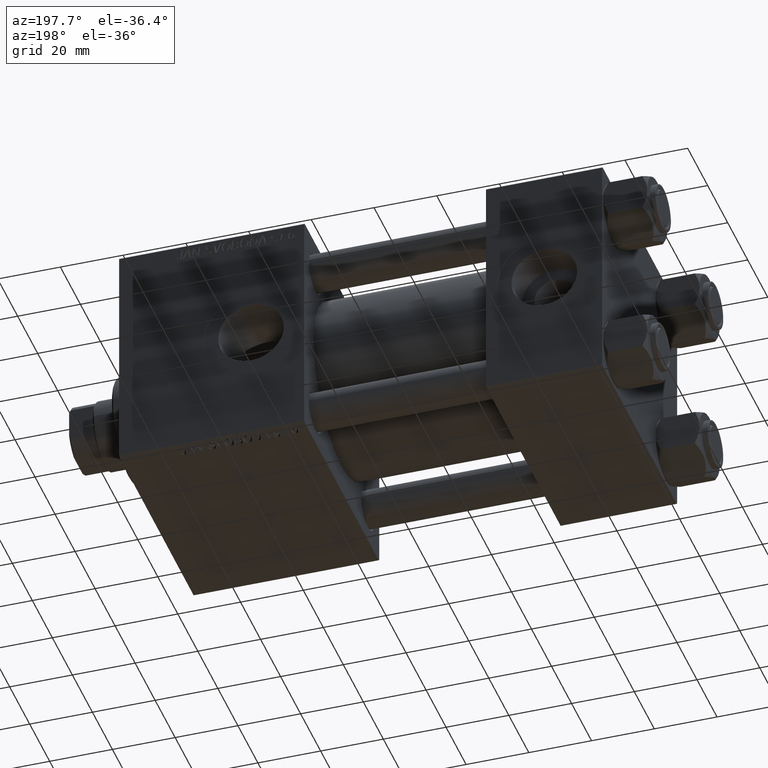
[diagram: clean part render]
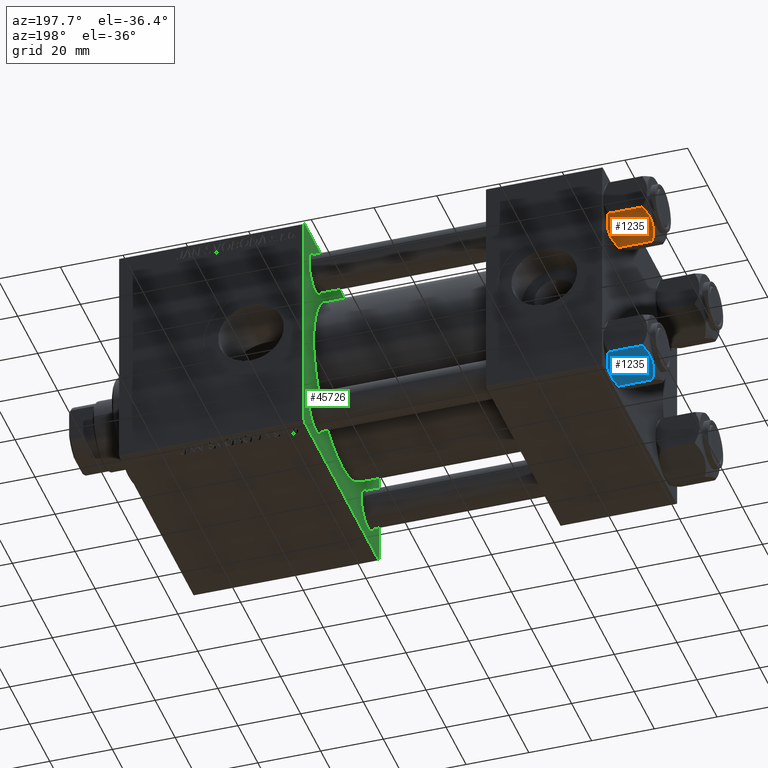
[diagram: same view with three faces highlighted in distinct colors, each labeled with its STEP entity id]
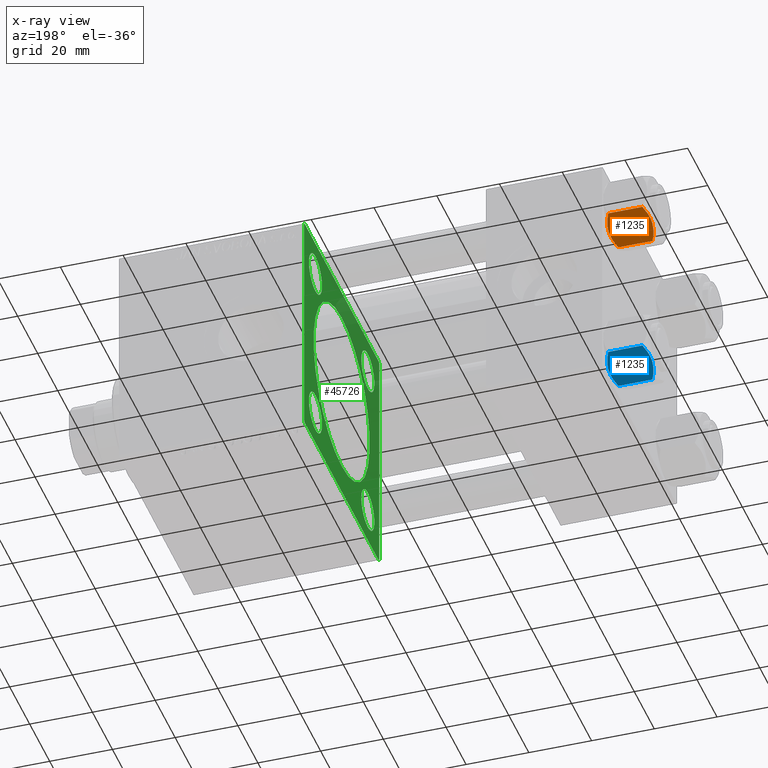
[diagram: x-ray of the same camera — body ghosted, the three highlighted faces saturated]
A machine part, auxiliary view with three faces highlighted in distinct colors.
The next image is the same camera in x-ray (body ghosted, the three faces saturated) — at least one of them is partly hidden behind the body in this view.
Their STEP definitions:

[orange] entity #1235 — the highlighted planar face has unit normal (0, -0.5, 0.866).
#546 = EDGE_CURVE ( 'NONE', #10179, #28955, #17690, .T. ) ;
#1235 = ADVANCED_FACE ( 'NONE', ( #29588 ), #45114, .F. ) ;
#3995 = CARTESIAN_POINT ( 'NONE',  ( -10.69662495661650148, 1.599332489581337668, -0.7114554706434472742 ) ) ;
#4336 = EDGE_LOOP ( 'NONE', ( #10776, #11464, #45789, #26738, #33898, #37542 ) ) ;
#4874 = CARTESIAN_POINT ( 'NONE',  ( -5.809999999999997833, 10.06321519197518022, -12.44321519197518455 ) ) ;
#5474 = CARTESIAN_POINT ( 'NONE',  ( -8.715000000000001634, 5.031607595987591885, -14.00000000000000000 ) ) ;
#5675 = EDGE_CURVE ( 'NONE', #34033, #15609, #30622, .T. ) ;
#6272 = CARTESIAN_POINT ( 'NONE',  ( -9.974696630283190757, 2.849749030213795109, -13.69973261901325934 ) ) ;
#7233 = LINE ( 'NONE', #37517, #7392 ) ;
#7392 = VECTOR ( 'NONE', #41318, 1000.000000000000000 ) ;
#8567 = CARTESIAN_POINT ( 'NONE',  ( -8.715000000000003411, 5.031607595987592774, 0.000000000000000000 ) ) ;
#10179 = VERTEX_POINT ( 'NONE', #17200 ) ;
#10776 = ORIENTED_EDGE ( 'NONE', *, *, #32506, .F. ) ;
#11464 = ORIENTED_EDGE ( 'NONE', *, *, #546, .T. ) ;
#11877 = CARTESIAN_POINT ( 'NONE',  ( -9.220295946303428636, 4.156409344131455796, 3.796401669593772542E-15 ) ) ;
#12391 = CARTESIAN_POINT ( 'NONE',  ( -11.61999999999999922, 6.270720075409452187E-15, -1.556784808024810562 ) ) ;
#12852 = CARTESIAN_POINT ( 'NONE',  ( -8.202333004087897450, 5.919572880271055659, -0.03994118060690620559 ) ) ;
#13345 = CARTESIAN_POINT ( 'NONE',  ( -8.460569896449618099, 5.472293462311865753, 3.939644352451667145E-15 ) ) ;
#15609 = VERTEX_POINT ( 'NONE', #4874 ) ;
#17200 = CARTESIAN_POINT ( 'NONE',  ( -11.61999999999999922, 6.270720075510426383E-15, -12.44321519197518811 ) ) ;
#17690 = LINE ( 'NONE', #36508, #38178 ) ;
#17857 = B_SPLINE_CURVE_WITH_KNOTS ( 'NONE', 3,
 ( #33996, #29682, #45204, #6272, #17984, #33497, #45717, #25865 ),
 .UNSPECIFIED., .F., .F.,
 ( 4, 2, 2, 4 ),
 ( 2.544312114905218436E-07, 0.003011550106433537755, 0.004517197944044560980, 0.006022845781655582903 ),
 .UNSPECIFIED. ) ;
#17984 = CARTESIAN_POINT ( 'NONE',  ( -9.729165168613649328, 3.275021996682086822, -13.80960203119265906 ) ) ;
#18030 = CARTESIAN_POINT ( 'NONE',  ( -7.713000053756302599, 6.767122412062954062, -13.84547602999601601 ) ) ;
#19278 = VERTEX_POINT ( 'NONE', #21200 ) ;
#20024 = CARTESIAN_POINT ( 'NONE',  ( -6.265545725125282850, 9.274186850887385702, -1.101239082899533539 ) ) ;
#20857 = CARTESIAN_POINT ( 'NONE',  ( -8.715000000000001634, 5.031607595987591885, -14.00000000000000000 ) ) ;
#21200 = CARTESIAN_POINT ( 'NONE',  ( -5.809999999999997833, 10.06321519197518022, -1.556784808024814115 ) ) ;
#21531 = B_SPLINE_CURVE_WITH_KNOTS ( 'NONE', 3,
 ( #28145, #20024, #47488, #43901, #24819, #12852, #13345, #8567 ),
 .UNSPECIFIED., .F., .F.,
 ( 4, 2, 2, 4 ),
 ( 2.544312114902182352E-07, 0.003011550106433540791, 0.004517197944044565316, 0.006022845781655589842 ),
 .UNSPECIFIED. ) ;
#24677 = CARTESIAN_POINT ( 'NONE',  ( -8.209704053696567527, 5.906805847843725310, -14.00000000000000533 ) ) ;
#24817 = CARTESIAN_POINT ( 'NONE',  ( -11.61999999999999922, 6.270720075409452187E-15, -1.556784808024810562 ) ) ;
#24819 = CARTESIAN_POINT ( 'NONE',  ( -7.700834831386344170, 6.788193195293096949, -0.1903979688073401122 ) ) ;
#25035 = CARTESIAN_POINT ( 'NONE',  ( -8.715000000000003411, 5.031607595987592774, 0.000000000000000000 ) ) ;
#25564 = EDGE_CURVE ( 'NONE', #35865, #28955, #27387, .T. ) ;
#25750 = EDGE_CURVE ( 'NONE', #15609, #19278, #7233, .T. ) ;
#25770 = DIRECTION ( 'NONE',  ( 0.8660254037844385966, -0.5000000000000002220, 0.000000000000000000 ) ) ;
#25865 = CARTESIAN_POINT ( 'NONE',  ( -8.715000000000001634, 5.031607595987591885, -14.00000000000000000 ) ) ;
#26025 = CARTESIAN_POINT ( 'NONE',  ( -11.61999999999999922, 6.288644352490894150E-15, -14.00000000000000000 ) ) ;
#26738 = ORIENTED_EDGE ( 'NONE', *, *, #38967, .F. ) ;
#27387 = B_SPLINE_CURVE_WITH_KNOTS ( 'NONE', 3,
 ( #35774, #11877, #38836, #3995, #43442, #12391 ),
 .UNSPECIFIED., .F., .F.,
 ( 4, 2, 4 ),
 ( 0.006022845781655589842, 0.009013049135303633289, 0.01200325248895167674 ),
 .UNSPECIFIED. ) ;
#28145 = CARTESIAN_POINT ( 'NONE',  ( -5.809999999999997833, 10.06321519197518022, -1.556784808024814115 ) ) ;
#28955 = VERTEX_POINT ( 'NONE', #24817 ) ;
#29588 = FACE_OUTER_BOUND ( 'NONE', #4336, .T. ) ;
#29682 = CARTESIAN_POINT ( 'NONE',  ( -11.16445427487471598, 0.7890283410878030645, -12.89876091710047312 ) ) ;
#30622 = B_SPLINE_CURVE_WITH_KNOTS ( 'NONE', 3,
 ( #20857, #24677, #18030, #48325, #36585, #33023 ),
 .UNSPECIFIED., .F., .F.,
 ( 4, 2, 4 ),
 ( 0.006022845781655582903, 0.009013049135303629819, 0.01200325248895167847 ),
 .UNSPECIFIED. ) ;
#32506 = EDGE_CURVE ( 'NONE', #10179, #34033, #17857, .T. ) ;
#33023 = CARTESIAN_POINT ( 'NONE',  ( -5.809999999999997833, 10.06321519197518022, -12.44321519197518455 ) ) ;
#33497 = CARTESIAN_POINT ( 'NONE',  ( -9.227666995912096937, 4.143642311704127223, -13.96005881939308857 ) ) ;
#33898 = ORIENTED_EDGE ( 'NONE', *, *, #25750, .F. ) ;
#33996 = CARTESIAN_POINT ( 'NONE',  ( -11.61999999999999922, 6.270720075510426383E-15, -12.44321519197518811 ) ) ;
#34033 = VERTEX_POINT ( 'NONE', #5474 ) ;
#35774 = CARTESIAN_POINT ( 'NONE',  ( -8.715000000000003411, 5.031607595987592774, 0.000000000000000000 ) ) ;
#35865 = VERTEX_POINT ( 'NONE', #25035 ) ;
#36269 = DIRECTION ( 'NONE',  ( -0.000000000000000000, -0.000000000000000000, 1.000000000000000000 ) ) ;
#36508 = CARTESIAN_POINT ( 'NONE',  ( -11.61999999999999922, 6.288644352490894150E-15, -14.00000000000000000 ) ) ;
#36585 = CARTESIAN_POINT ( 'NONE',  ( -6.265018354709776638, 9.275100283241455301, -12.89823354668505218 ) ) ;
#37517 = CARTESIAN_POINT ( 'NONE',  ( -5.809999999999997833, 10.06321519197518022, -14.00000000000000000 ) ) ;
#37542 = ORIENTED_EDGE ( 'NONE', *, *, #5675, .F. ) ;
#38178 = VECTOR ( 'NONE', #36269, 1000.000000000000000 ) ;
#38836 = CARTESIAN_POINT ( 'NONE',  ( -9.716999946243694453, 3.296092779912229265, -0.1545239700039824915 ) ) ;
#38967 = EDGE_CURVE ( 'NONE', #19278, #35865, #21531, .T. ) ;
#41277 = DIRECTION ( 'NONE',  ( 0.5000000000000001110, 0.8660254037844384856, 0.000000000000000000 ) ) ;
#41318 = DIRECTION ( 'NONE',  ( -0.000000000000000000, -0.000000000000000000, 1.000000000000000000 ) ) ;
#43442 = CARTESIAN_POINT ( 'NONE',  ( -11.16498164529022219, 0.7881149087337359083, -1.101766453314949379 ) ) ;
#43901 = CARTESIAN_POINT ( 'NONE',  ( -7.455303369716805406, 7.213466161761384221, -0.3002673809867362764 ) ) ;
#45114 = PLANE ( 'NONE',  #49561 ) ;
#45204 = CARTESIAN_POINT ( 'NONE',  ( -10.69859855102501101, 1.595914123792268491, -13.28585617404753627 ) ) ;
#45717 = CARTESIAN_POINT ( 'NONE',  ( -8.969430103550378064, 4.590921729663314466, -14.00000000000000178 ) ) ;
#45789 = ORIENTED_EDGE ( 'NONE', *, *, #25564, .F. ) ;
#47488 = CARTESIAN_POINT ( 'NONE',  ( -6.731401448974986934, 8.467301068182916168, -0.7141438259524646170 ) ) ;
#48325 = CARTESIAN_POINT ( 'NONE',  ( -6.733375043383492020, 8.463882702393842550, -13.28854452935654962 ) ) ;
#49561 = AXIS2_PLACEMENT_3D ( 'NONE', #26025, #25770, #41277 ) ;

[blue] entity #1235 — the highlighted planar face has unit normal (0, -0.5, 0.866).
#546 = EDGE_CURVE ( 'NONE', #10179, #28955, #17690, .T. ) ;
#1235 = ADVANCED_FACE ( 'NONE', ( #29588 ), #45114, .F. ) ;
#3995 = CARTESIAN_POINT ( 'NONE',  ( -10.69662495661650148, 1.599332489581337668, -0.7114554706434472742 ) ) ;
#4336 = EDGE_LOOP ( 'NONE', ( #10776, #11464, #45789, #26738, #33898, #37542 ) ) ;
#4874 = CARTESIAN_POINT ( 'NONE',  ( -5.809999999999997833, 10.06321519197518022, -12.44321519197518455 ) ) ;
#5474 = CARTESIAN_POINT ( 'NONE',  ( -8.715000000000001634, 5.031607595987591885, -14.00000000000000000 ) ) ;
#5675 = EDGE_CURVE ( 'NONE', #34033, #15609, #30622, .T. ) ;
#6272 = CARTESIAN_POINT ( 'NONE',  ( -9.974696630283190757, 2.849749030213795109, -13.69973261901325934 ) ) ;
#7233 = LINE ( 'NONE', #37517, #7392 ) ;
#7392 = VECTOR ( 'NONE', #41318, 1000.000000000000000 ) ;
#8567 = CARTESIAN_POINT ( 'NONE',  ( -8.715000000000003411, 5.031607595987592774, 0.000000000000000000 ) ) ;
#10179 = VERTEX_POINT ( 'NONE', #17200 ) ;
#10776 = ORIENTED_EDGE ( 'NONE', *, *, #32506, .F. ) ;
#11464 = ORIENTED_EDGE ( 'NONE', *, *, #546, .T. ) ;
#11877 = CARTESIAN_POINT ( 'NONE',  ( -9.220295946303428636, 4.156409344131455796, 3.796401669593772542E-15 ) ) ;
#12391 = CARTESIAN_POINT ( 'NONE',  ( -11.61999999999999922, 6.270720075409452187E-15, -1.556784808024810562 ) ) ;
#12852 = CARTESIAN_POINT ( 'NONE',  ( -8.202333004087897450, 5.919572880271055659, -0.03994118060690620559 ) ) ;
#13345 = CARTESIAN_POINT ( 'NONE',  ( -8.460569896449618099, 5.472293462311865753, 3.939644352451667145E-15 ) ) ;
#15609 = VERTEX_POINT ( 'NONE', #4874 ) ;
#17200 = CARTESIAN_POINT ( 'NONE',  ( -11.61999999999999922, 6.270720075510426383E-15, -12.44321519197518811 ) ) ;
#17690 = LINE ( 'NONE', #36508, #38178 ) ;
#17857 = B_SPLINE_CURVE_WITH_KNOTS ( 'NONE', 3,
 ( #33996, #29682, #45204, #6272, #17984, #33497, #45717, #25865 ),
 .UNSPECIFIED., .F., .F.,
 ( 4, 2, 2, 4 ),
 ( 2.544312114905218436E-07, 0.003011550106433537755, 0.004517197944044560980, 0.006022845781655582903 ),
 .UNSPECIFIED. ) ;
#17984 = CARTESIAN_POINT ( 'NONE',  ( -9.729165168613649328, 3.275021996682086822, -13.80960203119265906 ) ) ;
#18030 = CARTESIAN_POINT ( 'NONE',  ( -7.713000053756302599, 6.767122412062954062, -13.84547602999601601 ) ) ;
#19278 = VERTEX_POINT ( 'NONE', #21200 ) ;
#20024 = CARTESIAN_POINT ( 'NONE',  ( -6.265545725125282850, 9.274186850887385702, -1.101239082899533539 ) ) ;
#20857 = CARTESIAN_POINT ( 'NONE',  ( -8.715000000000001634, 5.031607595987591885, -14.00000000000000000 ) ) ;
#21200 = CARTESIAN_POINT ( 'NONE',  ( -5.809999999999997833, 10.06321519197518022, -1.556784808024814115 ) ) ;
#21531 = B_SPLINE_CURVE_WITH_KNOTS ( 'NONE', 3,
 ( #28145, #20024, #47488, #43901, #24819, #12852, #13345, #8567 ),
 .UNSPECIFIED., .F., .F.,
 ( 4, 2, 2, 4 ),
 ( 2.544312114902182352E-07, 0.003011550106433540791, 0.004517197944044565316, 0.006022845781655589842 ),
 .UNSPECIFIED. ) ;
#24677 = CARTESIAN_POINT ( 'NONE',  ( -8.209704053696567527, 5.906805847843725310, -14.00000000000000533 ) ) ;
#24817 = CARTESIAN_POINT ( 'NONE',  ( -11.61999999999999922, 6.270720075409452187E-15, -1.556784808024810562 ) ) ;
#24819 = CARTESIAN_POINT ( 'NONE',  ( -7.700834831386344170, 6.788193195293096949, -0.1903979688073401122 ) ) ;
#25035 = CARTESIAN_POINT ( 'NONE',  ( -8.715000000000003411, 5.031607595987592774, 0.000000000000000000 ) ) ;
#25564 = EDGE_CURVE ( 'NONE', #35865, #28955, #27387, .T. ) ;
#25750 = EDGE_CURVE ( 'NONE', #15609, #19278, #7233, .T. ) ;
#25770 = DIRECTION ( 'NONE',  ( 0.8660254037844385966, -0.5000000000000002220, 0.000000000000000000 ) ) ;
#25865 = CARTESIAN_POINT ( 'NONE',  ( -8.715000000000001634, 5.031607595987591885, -14.00000000000000000 ) ) ;
#26025 = CARTESIAN_POINT ( 'NONE',  ( -11.61999999999999922, 6.288644352490894150E-15, -14.00000000000000000 ) ) ;
#26738 = ORIENTED_EDGE ( 'NONE', *, *, #38967, .F. ) ;
#27387 = B_SPLINE_CURVE_WITH_KNOTS ( 'NONE', 3,
 ( #35774, #11877, #38836, #3995, #43442, #12391 ),
 .UNSPECIFIED., .F., .F.,
 ( 4, 2, 4 ),
 ( 0.006022845781655589842, 0.009013049135303633289, 0.01200325248895167674 ),
 .UNSPECIFIED. ) ;
#28145 = CARTESIAN_POINT ( 'NONE',  ( -5.809999999999997833, 10.06321519197518022, -1.556784808024814115 ) ) ;
#28955 = VERTEX_POINT ( 'NONE', #24817 ) ;
#29588 = FACE_OUTER_BOUND ( 'NONE', #4336, .T. ) ;
#29682 = CARTESIAN_POINT ( 'NONE',  ( -11.16445427487471598, 0.7890283410878030645, -12.89876091710047312 ) ) ;
#30622 = B_SPLINE_CURVE_WITH_KNOTS ( 'NONE', 3,
 ( #20857, #24677, #18030, #48325, #36585, #33023 ),
 .UNSPECIFIED., .F., .F.,
 ( 4, 2, 4 ),
 ( 0.006022845781655582903, 0.009013049135303629819, 0.01200325248895167847 ),
 .UNSPECIFIED. ) ;
#32506 = EDGE_CURVE ( 'NONE', #10179, #34033, #17857, .T. ) ;
#33023 = CARTESIAN_POINT ( 'NONE',  ( -5.809999999999997833, 10.06321519197518022, -12.44321519197518455 ) ) ;
#33497 = CARTESIAN_POINT ( 'NONE',  ( -9.227666995912096937, 4.143642311704127223, -13.96005881939308857 ) ) ;
#33898 = ORIENTED_EDGE ( 'NONE', *, *, #25750, .F. ) ;
#33996 = CARTESIAN_POINT ( 'NONE',  ( -11.61999999999999922, 6.270720075510426383E-15, -12.44321519197518811 ) ) ;
#34033 = VERTEX_POINT ( 'NONE', #5474 ) ;
#35774 = CARTESIAN_POINT ( 'NONE',  ( -8.715000000000003411, 5.031607595987592774, 0.000000000000000000 ) ) ;
#35865 = VERTEX_POINT ( 'NONE', #25035 ) ;
#36269 = DIRECTION ( 'NONE',  ( -0.000000000000000000, -0.000000000000000000, 1.000000000000000000 ) ) ;
#36508 = CARTESIAN_POINT ( 'NONE',  ( -11.61999999999999922, 6.288644352490894150E-15, -14.00000000000000000 ) ) ;
#36585 = CARTESIAN_POINT ( 'NONE',  ( -6.265018354709776638, 9.275100283241455301, -12.89823354668505218 ) ) ;
#37517 = CARTESIAN_POINT ( 'NONE',  ( -5.809999999999997833, 10.06321519197518022, -14.00000000000000000 ) ) ;
#37542 = ORIENTED_EDGE ( 'NONE', *, *, #5675, .F. ) ;
#38178 = VECTOR ( 'NONE', #36269, 1000.000000000000000 ) ;
#38836 = CARTESIAN_POINT ( 'NONE',  ( -9.716999946243694453, 3.296092779912229265, -0.1545239700039824915 ) ) ;
#38967 = EDGE_CURVE ( 'NONE', #19278, #35865, #21531, .T. ) ;
#41277 = DIRECTION ( 'NONE',  ( 0.5000000000000001110, 0.8660254037844384856, 0.000000000000000000 ) ) ;
#41318 = DIRECTION ( 'NONE',  ( -0.000000000000000000, -0.000000000000000000, 1.000000000000000000 ) ) ;
#43442 = CARTESIAN_POINT ( 'NONE',  ( -11.16498164529022219, 0.7881149087337359083, -1.101766453314949379 ) ) ;
#43901 = CARTESIAN_POINT ( 'NONE',  ( -7.455303369716805406, 7.213466161761384221, -0.3002673809867362764 ) ) ;
#45114 = PLANE ( 'NONE',  #49561 ) ;
#45204 = CARTESIAN_POINT ( 'NONE',  ( -10.69859855102501101, 1.595914123792268491, -13.28585617404753627 ) ) ;
#45717 = CARTESIAN_POINT ( 'NONE',  ( -8.969430103550378064, 4.590921729663314466, -14.00000000000000178 ) ) ;
#45789 = ORIENTED_EDGE ( 'NONE', *, *, #25564, .F. ) ;
#47488 = CARTESIAN_POINT ( 'NONE',  ( -6.731401448974986934, 8.467301068182916168, -0.7141438259524646170 ) ) ;
#48325 = CARTESIAN_POINT ( 'NONE',  ( -6.733375043383492020, 8.463882702393842550, -13.28854452935654962 ) ) ;
#49561 = AXIS2_PLACEMENT_3D ( 'NONE', #26025, #25770, #41277 ) ;

[green] entity #45726 — the highlighted planar face has unit normal (-1, 0, 0).
#88 = VECTOR ( 'NONE', #36224, 1000.000000000000114 ) ;
#164 = CARTESIAN_POINT ( 'NONE',  ( 95.00000000000000000, -2.602085213965210642E-15, 0.000000000000000000 ) ) ;
#231 = CARTESIAN_POINT ( 'NONE',  ( 95.00000000000000000, 26.14999999999999858, 26.15000000000000213 ) ) ;
#289 = ORIENTED_EDGE ( 'NONE', *, *, #37687, .F. ) ;
#971 = AXIS2_PLACEMENT_3D ( 'NONE', #45606, #11247, #10754 ) ;
#1452 = EDGE_CURVE ( 'NONE', #35498, #30117, #43101, .T. ) ;
#1508 = ORIENTED_EDGE ( 'NONE', *, *, #30289, .T. ) ;
#1775 = DIRECTION ( 'NONE',  ( 0.000000000000000000, 0.000000000000000000, -1.000000000000000000 ) ) ;
#1816 = CARTESIAN_POINT ( 'NONE',  ( 95.00000000000000000, -26.14999999999999147, 26.15000000000000924 ) ) ;
#1974 = EDGE_LOOP ( 'NONE', ( #10250, #48907, #15872, #33097, #289, #28584, #21096, #23961 ) ) ;
#2468 = AXIS2_PLACEMENT_3D ( 'NONE', #1816, #40457, #29022 ) ;
#2546 = ORIENTED_EDGE ( 'NONE', *, *, #23704, .T. ) ;
#2739 = DIRECTION ( 'NONE',  ( 0.000000000000000000, -0.7071067811865671127, 0.7071067811865279218 ) ) ;
#3019 = EDGE_LOOP ( 'NONE', ( #14239, #46843 ) ) ;
#3572 = FACE_BOUND ( 'NONE', #44704, .T. ) ;
#3784 = DIRECTION ( 'NONE',  ( 1.000000000000000000, 0.000000000000000000, -0.000000000000000000 ) ) ;
#4063 = DIRECTION ( 'NONE',  ( 0.000000000000000000, 0.000000000000000000, 1.000000000000000000 ) ) ;
#4758 = VERTEX_POINT ( 'NONE', #48053 ) ;
#4892 = AXIS2_PLACEMENT_3D ( 'NONE', #231, #3784, #34803 ) ;
#5412 = CARTESIAN_POINT ( 'NONE',  ( 95.00000000000000000, 26.14999999999999858, 19.64999999999999147 ) ) ;
#5725 = VERTEX_POINT ( 'NONE', #25661 ) ;
#5745 = CARTESIAN_POINT ( 'NONE',  ( 95.00000000000000000, -26.14999999999999147, 19.64999999999999147 ) ) ;
#6434 = EDGE_CURVE ( 'NONE', #4758, #33706, #20981, .T. ) ;
#6546 = LINE ( 'NONE', #37581, #17979 ) ;
#7158 = ORIENTED_EDGE ( 'NONE', *, *, #26832, .T. ) ;
#7457 = CIRCLE ( 'NONE', #971, 6.500000000000015987 ) ;
#7471 = EDGE_CURVE ( 'NONE', #28661, #13360, #6546, .T. ) ;
#7597 = CARTESIAN_POINT ( 'NONE',  ( 95.00000000000000000, -37.50000000000000711, -37.00000000000000711 ) ) ;
#7640 = CARTESIAN_POINT ( 'NONE',  ( 95.00000000000000000, 0.000000000000000000, 0.000000000000000000 ) ) ;
#8035 = DIRECTION ( 'NONE',  ( 0.000000000000000000, 0.7071067811865474617, -0.7071067811865474617 ) ) ;
#8141 = FACE_BOUND ( 'NONE', #10000, .T. ) ;
#8793 = CARTESIAN_POINT ( 'NONE',  ( 95.00000000000000000, 37.25000000000000000, 37.25000000000000000 ) ) ;
#8868 = DIRECTION ( 'NONE',  ( 0.000000000000000000, -1.000000000000000000, 0.000000000000000000 ) ) ;
#9522 = DIRECTION ( 'NONE',  ( 1.000000000000000000, 0.000000000000000000, -0.000000000000000000 ) ) ;
#9654 = CARTESIAN_POINT ( 'NONE',  ( 95.00000000000000000, -2.602085213965210642E-15, 0.000000000000000000 ) ) ;
#9679 = DIRECTION ( 'NONE',  ( 0.000000000000000000, 0.000000000000000000, 1.000000000000000000 ) ) ;
#9921 = AXIS2_PLACEMENT_3D ( 'NONE', #164, #38321, #50055 ) ;
#10000 = EDGE_LOOP ( 'NONE', ( #47894, #43012 ) ) ;
#10079 = EDGE_LOOP ( 'NONE', ( #1508, #2546 ) ) ;
#10250 = ORIENTED_EDGE ( 'NONE', *, *, #21712, .T. ) ;
#10731 = VECTOR ( 'NONE', #42749, 1000.000000000000000 ) ;
#10754 = DIRECTION ( 'NONE',  ( 0.000000000000000000, 0.000000000000000000, 1.000000000000000000 ) ) ;
#10938 = CIRCLE ( 'NONE', #46691, 28.00000000000000000 ) ;
#11100 = CARTESIAN_POINT ( 'NONE',  ( 95.00000000000000000, 37.50000000000000000, -36.99999999999999289 ) ) ;
#11165 = VECTOR ( 'NONE', #8035, 1000.000000000000114 ) ;
#11247 = DIRECTION ( 'NONE',  ( 1.000000000000000000, 0.000000000000000000, -0.000000000000000000 ) ) ;
#11957 = LINE ( 'NONE', #46583, #10731 ) ;
#12100 = LINE ( 'NONE', #8793, #11165 ) ;
#12679 = CARTESIAN_POINT ( 'NONE',  ( 95.00000000000000000, 37.50000000000000000, -37.50000000000000000 ) ) ;
#13360 = VERTEX_POINT ( 'NONE', #7597 ) ;
#13458 = CARTESIAN_POINT ( 'NONE',  ( 95.00000000000000000, 37.50000000000000000, 37.49999999999999289 ) ) ;
#13527 = CARTESIAN_POINT ( 'NONE',  ( 95.00000000000000000, 26.14999999999999858, 26.15000000000000213 ) ) ;
#13585 = CARTESIAN_POINT ( 'NONE',  ( 95.00000000000000000, -26.14999999999999147, -26.15000000000000924 ) ) ;
#13643 = EDGE_CURVE ( 'NONE', #33371, #13883, #12100, .T. ) ;
#13728 = EDGE_CURVE ( 'NONE', #30117, #35498, #16049, .T. ) ;
#13874 = CARTESIAN_POINT ( 'NONE',  ( 95.00000000000000000, 37.25000000000026290, -37.24999999999974420 ) ) ;
#13883 = VERTEX_POINT ( 'NONE', #27066 ) ;
#14159 = CARTESIAN_POINT ( 'NONE',  ( 95.00000000000000000, -36.99999999999998579, -37.50000000000000000 ) ) ;
#14239 = ORIENTED_EDGE ( 'NONE', *, *, #18297, .T. ) ;
#14732 = CARTESIAN_POINT ( 'NONE',  ( 95.00000000000000000, -36.99999999999997158, 37.49999999999997868 ) ) ;
#14795 = DIRECTION ( 'NONE',  ( 0.000000000000000000, 0.000000000000000000, 1.000000000000000000 ) ) ;
#14834 = DIRECTION ( 'NONE',  ( 1.000000000000000000, 0.000000000000000000, -0.000000000000000000 ) ) ;
#15255 = CIRCLE ( 'NONE', #22576, 6.500000000000015987 ) ;
#15401 = CARTESIAN_POINT ( 'NONE',  ( 95.00000000000000000, 37.00000000000000000, -37.50000000000000000 ) ) ;
#15616 = CARTESIAN_POINT ( 'NONE',  ( 95.00000000000000000, -26.14999999999999147, 32.65000000000003411 ) ) ;
#15736 = CIRCLE ( 'NONE', #32790, 6.500000000000015987 ) ;
#15872 = ORIENTED_EDGE ( 'NONE', *, *, #27995, .F. ) ;
#16049 = CIRCLE ( 'NONE', #44470, 6.500000000000015987 ) ;
#17410 = CARTESIAN_POINT ( 'NONE',  ( 95.00000000000000000, -26.14999999999999147, 26.15000000000000924 ) ) ;
#17567 = CARTESIAN_POINT ( 'NONE',  ( 95.00000000000000000, 26.14999999999999858, -26.15000000000000213 ) ) ;
#17979 = VECTOR ( 'NONE', #2739, 1000.000000000000000 ) ;
#17980 = CIRCLE ( 'NONE', #48867, 6.500000000000008882 ) ;
#18297 = EDGE_CURVE ( 'NONE', #18518, #42601, #15255, .T. ) ;
#18518 = VERTEX_POINT ( 'NONE', #30265 ) ;
#19416 = DIRECTION ( 'NONE',  ( 0.000000000000000000, 0.000000000000000000, 1.000000000000000000 ) ) ;
#19598 = FACE_BOUND ( 'NONE', #23900, .T. ) ;
#20734 = VERTEX_POINT ( 'NONE', #23319 ) ;
#20748 = CARTESIAN_POINT ( 'NONE',  ( 95.00000000000000000, -37.24999999999997158, 37.24999999999997158 ) ) ;
#20798 = VERTEX_POINT ( 'NONE', #11100 ) ;
#20981 = LINE ( 'NONE', #20748, #88 ) ;
#21096 = ORIENTED_EDGE ( 'NONE', *, *, #37376, .T. ) ;
#21385 = DIRECTION ( 'NONE',  ( 0.000000000000000000, 0.000000000000000000, -1.000000000000000000 ) ) ;
#21712 = EDGE_CURVE ( 'NONE', #37800, #28661, #46799, .T. ) ;
#22113 = CIRCLE ( 'NONE', #9921, 28.00000000000000000 ) ;
#22576 = AXIS2_PLACEMENT_3D ( 'NONE', #13585, #48710, #14795 ) ;
#23319 = CARTESIAN_POINT ( 'NONE',  ( 95.00000000000000000, 26.14999999999999858, -19.64999999999998792 ) ) ;
#23704 = EDGE_CURVE ( 'NONE', #25960, #26363, #26818, .T. ) ;
#23767 = LINE ( 'NONE', #13458, #32015 ) ;
#23900 = EDGE_LOOP ( 'NONE', ( #7158, #35648 ) ) ;
#23961 = ORIENTED_EDGE ( 'NONE', *, *, #27527, .T. ) ;
#25046 = DIRECTION ( 'NONE',  ( 0.000000000000000000, 0.000000000000000000, 1.000000000000000000 ) ) ;
#25053 = VERTEX_POINT ( 'NONE', #36688 ) ;
#25142 = CARTESIAN_POINT ( 'NONE',  ( 95.00000000000000000, 26.14999999999999858, 32.65000000000001990 ) ) ;
#25186 = DIRECTION ( 'NONE',  ( 1.000000000000000000, 0.000000000000000000, 0.000000000000000000 ) ) ;
#25374 = LINE ( 'NONE', #45446, #46658 ) ;
#25661 = CARTESIAN_POINT ( 'NONE',  ( 95.00000000000000000, 26.14999999999999858, -32.65000000000001990 ) ) ;
#25960 = VERTEX_POINT ( 'NONE', #5412 ) ;
#26094 = DIRECTION ( 'NONE',  ( -0.000000000000000000, -0.7071067811865425767, -0.7071067811865525687 ) ) ;
#26363 = VERTEX_POINT ( 'NONE', #25142 ) ;
#26818 = CIRCLE ( 'NONE', #4892, 6.500000000000008882 ) ;
#26832 = EDGE_CURVE ( 'NONE', #20734, #5725, #44793, .T. ) ;
#26978 = FACE_BOUND ( 'NONE', #10079, .T. ) ;
#27066 = CARTESIAN_POINT ( 'NONE',  ( 95.00000000000000000, 37.50000000000000000, 36.99999999999999289 ) ) ;
#27527 = EDGE_CURVE ( 'NONE', #20798, #37800, #29654, .T. ) ;
#27995 = EDGE_CURVE ( 'NONE', #4758, #13360, #11957, .T. ) ;
#28567 = VERTEX_POINT ( 'NONE', #36069 ) ;
#28584 = ORIENTED_EDGE ( 'NONE', *, *, #13643, .T. ) ;
#28661 = VERTEX_POINT ( 'NONE', #14159 ) ;
#28758 = EDGE_CURVE ( 'NONE', #28567, #25053, #22113, .T. ) ;
#29022 = DIRECTION ( 'NONE',  ( 0.000000000000000000, 0.000000000000000000, 1.000000000000000000 ) ) ;
#29059 = DIRECTION ( 'NONE',  ( 1.000000000000000000, 0.000000000000000000, -0.000000000000000000 ) ) ;
#29654 = LINE ( 'NONE', #13874, #39136 ) ;
#30117 = VERTEX_POINT ( 'NONE', #15616 ) ;
#30265 = CARTESIAN_POINT ( 'NONE',  ( 95.00000000000000000, -26.14999999999999147, -19.64999999999999503 ) ) ;
#30289 = EDGE_CURVE ( 'NONE', #26363, #25960, #17980, .T. ) ;
#30847 = CARTESIAN_POINT ( 'NONE',  ( 95.00000000000000000, 26.14999999999999858, -26.15000000000000213 ) ) ;
#32015 = VECTOR ( 'NONE', #1775, 1000.000000000000000 ) ;
#32790 = AXIS2_PLACEMENT_3D ( 'NONE', #30847, #14834, #19416 ) ;
#33097 = ORIENTED_EDGE ( 'NONE', *, *, #6434, .T. ) ;
#33371 = VERTEX_POINT ( 'NONE', #49474 ) ;
#33706 = VERTEX_POINT ( 'NONE', #14732 ) ;
#34346 = FACE_BOUND ( 'NONE', #3019, .T. ) ;
#34588 = DIRECTION ( 'NONE',  ( -1.000000000000000000, -0.000000000000000000, 0.000000000000000000 ) ) ;
#34803 = DIRECTION ( 'NONE',  ( 0.000000000000000000, 0.000000000000000000, 1.000000000000000000 ) ) ;
#35498 = VERTEX_POINT ( 'NONE', #5745 ) ;
#35648 = ORIENTED_EDGE ( 'NONE', *, *, #36071, .T. ) ;
#35677 = VECTOR ( 'NONE', #8868, 1000.000000000000000 ) ;
#35944 = ORIENTED_EDGE ( 'NONE', *, *, #28758, .T. ) ;
#36069 = CARTESIAN_POINT ( 'NONE',  ( 95.00000000000000000, -2.602085213965210642E-15, 28.00000000000000000 ) ) ;
#36071 = EDGE_CURVE ( 'NONE', #5725, #20734, #15736, .T. ) ;
#36224 = DIRECTION ( 'NONE',  ( -0.000000000000000000, 0.7071067811865474617, 0.7071067811865474617 ) ) ;
#36688 = CARTESIAN_POINT ( 'NONE',  ( 95.00000000000000000, 8.269258236473776482E-16, -28.00000000000000000 ) ) ;
#37376 = EDGE_CURVE ( 'NONE', #13883, #20798, #23767, .T. ) ;
#37488 = AXIS2_PLACEMENT_3D ( 'NONE', #17567, #44550, #9679 ) ;
#37581 = CARTESIAN_POINT ( 'NONE',  ( 95.00000000000000000, -37.24999999999896261, -37.25000000000103029 ) ) ;
#37687 = EDGE_CURVE ( 'NONE', #33371, #33706, #25374, .T. ) ;
#37800 = VERTEX_POINT ( 'NONE', #15401 ) ;
#38321 = DIRECTION ( 'NONE',  ( 1.000000000000000000, 0.000000000000000000, 0.000000000000000000 ) ) ;
#38832 = EDGE_CURVE ( 'NONE', #25053, #28567, #10938, .T. ) ;
#39136 = VECTOR ( 'NONE', #26094, 999.9999999999998863 ) ;
#40457 = DIRECTION ( 'NONE',  ( 1.000000000000000000, 0.000000000000000000, -0.000000000000000000 ) ) ;
#40608 = DIRECTION ( 'NONE',  ( 0.000000000000000000, -1.000000000000000000, -1.850371707708594316E-16 ) ) ;
#41039 = CARTESIAN_POINT ( 'NONE',  ( 95.00000000000000000, -26.14999999999999147, -32.65000000000002700 ) ) ;
#42491 = FACE_OUTER_BOUND ( 'NONE', #1974, .T. ) ;
#42601 = VERTEX_POINT ( 'NONE', #41039 ) ;
#42749 = DIRECTION ( 'NONE',  ( 0.000000000000000000, -9.251858538542972814E-17, -1.000000000000000000 ) ) ;
#43012 = ORIENTED_EDGE ( 'NONE', *, *, #1452, .T. ) ;
#43101 = CIRCLE ( 'NONE', #2468, 6.500000000000015987 ) ;
#44470 = AXIS2_PLACEMENT_3D ( 'NONE', #17410, #9522, #25046 ) ;
#44550 = DIRECTION ( 'NONE',  ( 1.000000000000000000, 0.000000000000000000, -0.000000000000000000 ) ) ;
#44590 = DIRECTION ( 'NONE',  ( 0.000000000000000000, 0.000000000000000000, 1.000000000000000000 ) ) ;
#44704 = EDGE_LOOP ( 'NONE', ( #35944, #50190 ) ) ;
#44793 = CIRCLE ( 'NONE', #37488, 6.500000000000015987 ) ;
#45446 = CARTESIAN_POINT ( 'NONE',  ( 95.00000000000000000, 37.50000000000000000, 37.49999999999999289 ) ) ;
#45606 = CARTESIAN_POINT ( 'NONE',  ( 95.00000000000000000, -26.14999999999999147, -26.15000000000000924 ) ) ;
#45726 = ADVANCED_FACE ( 'NONE', ( #8141, #26978, #19598, #34346, #3572, #42491 ), #49898, .T. ) ;
#46583 = CARTESIAN_POINT ( 'NONE',  ( 95.00000000000000000, -37.50000000000000000, 37.49999999999997868 ) ) ;
#46658 = VECTOR ( 'NONE', #40608, 1000.000000000000000 ) ;
#46691 = AXIS2_PLACEMENT_3D ( 'NONE', #9654, #25186, #21385 ) ;
#46799 = LINE ( 'NONE', #12679, #35677 ) ;
#46843 = ORIENTED_EDGE ( 'NONE', *, *, #49206, .T. ) ;
#47894 = ORIENTED_EDGE ( 'NONE', *, *, #13728, .T. ) ;
#47947 = AXIS2_PLACEMENT_3D ( 'NONE', #7640, #34588, #4063 ) ;
#48053 = CARTESIAN_POINT ( 'NONE',  ( 95.00000000000000000, -37.50000000000000000, 36.99999999999995026 ) ) ;
#48710 = DIRECTION ( 'NONE',  ( 1.000000000000000000, 0.000000000000000000, -0.000000000000000000 ) ) ;
#48867 = AXIS2_PLACEMENT_3D ( 'NONE', #13527, #29059, #44590 ) ;
#48907 = ORIENTED_EDGE ( 'NONE', *, *, #7471, .T. ) ;
#49206 = EDGE_CURVE ( 'NONE', #42601, #18518, #7457, .T. ) ;
#49474 = CARTESIAN_POINT ( 'NONE',  ( 95.00000000000000000, 37.00000000000000000, 37.49999999999999289 ) ) ;
#49898 = PLANE ( 'NONE',  #47947 ) ;
#50055 = DIRECTION ( 'NONE',  ( 0.000000000000000000, 0.000000000000000000, -1.000000000000000000 ) ) ;
#50190 = ORIENTED_EDGE ( 'NONE', *, *, #38832, .T. ) ;